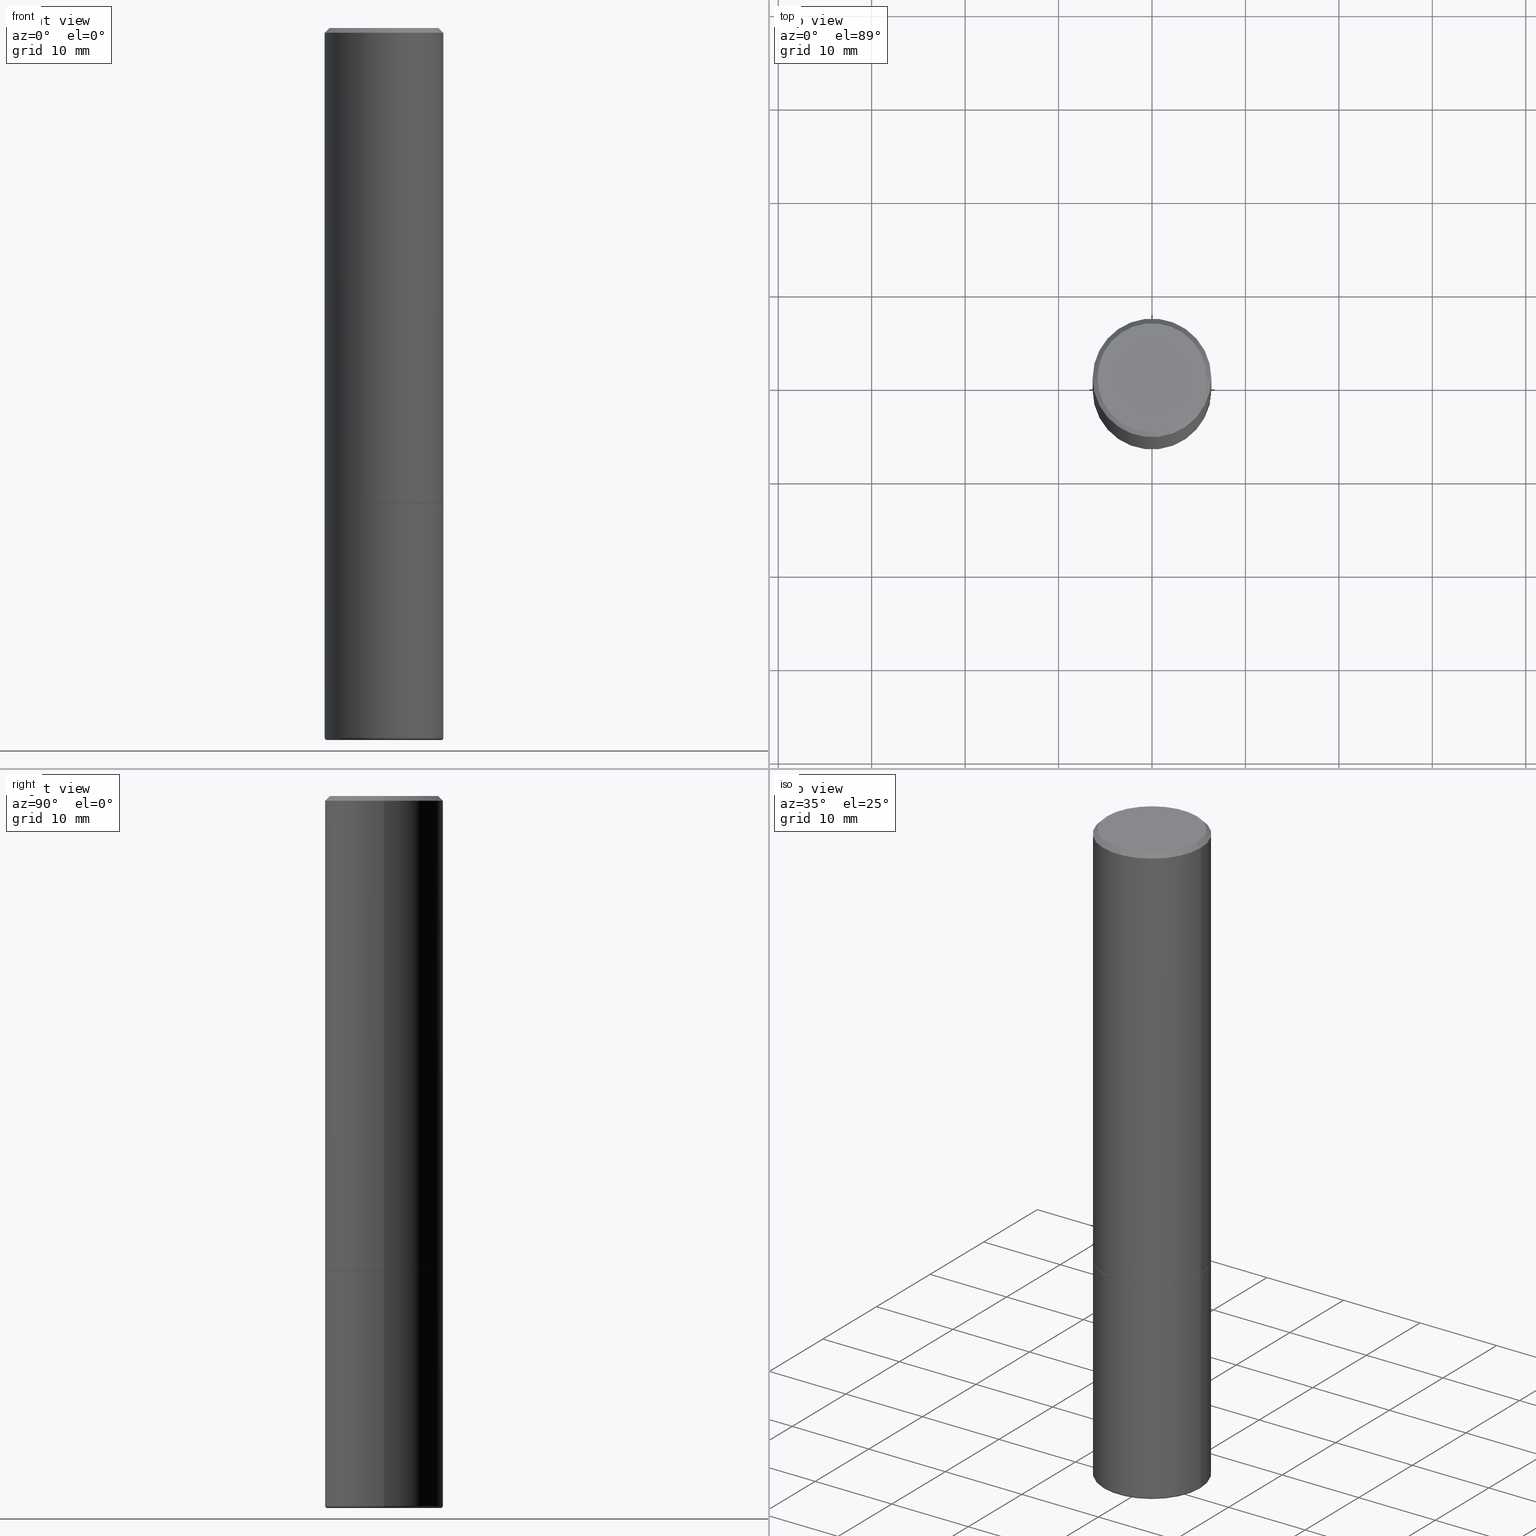
[diagram: canonical four-view strip — front | top / right | iso, engineering-drawing reading convention]
A machine part, canonical four-view strip (front | top / right | iso — engineering-drawing reading convention). The complete STEP part file that produces these views, byte-faithful:
ISO-10303-21;
HEADER;
FILE_DESCRIPTION (( 'STEP AP203' ),
    '1' );
FILE_NAME ('38835.STEP',
    '2024-03-03T15:54:48',
    ( '' ),
    ( '' ),
    'SwSTEP 2.0',
    'SolidWorks 2023',
    '' );
FILE_SCHEMA (( 'CONFIG_CONTROL_DESIGN' ));
ENDSEC;

DATA;
#1 = CARTESIAN_POINT ( 'NONE',  ( 7.311951730493558245E-29, -1.043952920314100628E-14, -2.990000000000000213 ) ) ;
#2 = ORIENTED_EDGE ( 'NONE', *, *, #366, .F. ) ;
#3 = LOCAL_TIME ( 10, 54, 48.00000000000000000, #297 ) ;
#4 = MANIFOLD_SOLID_BREP ( 'Body-Move/Copy2[1]', #337 ) ;
#5 = CC_DESIGN_DATE_AND_TIME_ASSIGNMENT ( #265, #100, ( #201 ) ) ;
#6 =( NAMED_UNIT ( * ) SI_UNIT ( $, .STERADIAN. ) SOLID_ANGLE_UNIT ( ) );
#7 = PERSON_AND_ORGANIZATION_ROLE ( 'creator' ) ;
#8 = CARTESIAN_POINT ( 'NONE',  ( 0.2500000000000002220, -8.725211865769017202E-15, -1.999000000000000110 ) ) ;
#9 = FACE_OUTER_BOUND ( 'NONE', #52, .T. ) ;
#10 = EDGE_CURVE ( 'NONE', #30, #228, #101, .T. ) ;
#11 = AXIS2_PLACEMENT_3D ( 'NONE', #371, #78, #24 ) ;
#12 = DIRECTION ( 'NONE',  ( -1.000000000000000000, 7.105427357600978193E-15, 0.000000000000000000 ) ) ;
#13 = DIRECTION ( 'NONE',  ( -2.445468806185136597E-29, 3.491481338843145583E-15, 1.000000000000000000 ) ) ;
#14 = MANIFOLD_SOLID_BREP ( 'Body-Move/Copy2[2]', #56 ) ;
#15 = CARTESIAN_POINT ( 'NONE',  ( 7.311951730493558245E-29, -1.043952920314100628E-14, -2.990000000000000213 ) ) ;
#16 = LOCAL_TIME ( 10, 54, 48.00000000000000000, #277 ) ;
#17 = ADVANCED_FACE ( 'NONE', ( #244 ), #208, .T. ) ;
#18 = CARTESIAN_POINT ( 'NONE',  ( -0.2299999999999999267, 1.640996229256272519E-15, 4.695363739109317495E-17 ) ) ;
#19 = CARTESIAN_POINT ( 'NONE',  ( 7.336406418555408669E-29, -1.047444401652943478E-14, -2.999999999999999556 ) ) ;
#20 = CARTESIAN_POINT ( 'NONE',  ( 4.890937612370273754E-29, -6.982962677686291954E-15, -2.000000000000000444 ) ) ;
#21 = ADVANCED_FACE ( 'NONE', ( #171 ), #152, .T. ) ;
#22 = EDGE_LOOP ( 'NONE', ( #95, #388, #377, #266 ) ) ;
#23 = CIRCLE ( 'NONE', #261, 0.2500000000000000000 ) ;
#24 = DIRECTION ( 'NONE',  ( 1.000000000000000000, -6.982962677686266711E-15, 0.000000000000000000 ) ) ;
#25 = ORIENTED_EDGE ( 'NONE', *, *, #135, .F. ) ;
#26 = LINE ( 'NONE', #126, #73 ) ;
#27 = CARTESIAN_POINT ( 'NONE',  ( 4.890937612370273754E-29, -6.982962677686291954E-15, -2.000000000000000444 ) ) ;
#28 = CARTESIAN_POINT ( 'NONE',  ( -0.2500000000000001110, 1.776356839400251254E-15, -1.229733772563727146E-29 ) ) ;
#29 = AXIS2_PLACEMENT_3D ( 'NONE', #316, #89, #57 ) ;
#30 = VERTEX_POINT ( 'NONE', #328 ) ;
#31 = DIRECTION ( 'NONE',  ( -2.445468806185136597E-29, 3.491481338843145583E-15, 1.000000000000000000 ) ) ;
#32 = VERTEX_POINT ( 'NONE', #393 ) ;
#33 =( NAMED_UNIT ( * ) PLANE_ANGLE_UNIT ( ) SI_UNIT ( $, .RADIAN. ) );
#34 = ORIENTED_EDGE ( 'NONE', *, *, #339, .F. ) ;
#35 = AXIS2_PLACEMENT_3D ( 'NONE', #286, #258, #94 ) ;
#36 = DATE_AND_TIME ( #358, #204 ) ;
#37 = CARTESIAN_POINT ( 'NONE',  ( 0.2399999999999999911, -1.211544024578571124E-14, -2.990000000000000213 ) ) ;
#38 = ADVANCED_FACE ( 'NONE', ( #359 ), #336, .T. ) ;
#39 = CARTESIAN_POINT ( 'NONE',  ( 0.000000000000000000, 0.000000000000000000, 0.000000000000000000 ) ) ;
#40 = ORIENTED_EDGE ( 'NONE', *, *, #122, .T. ) ;
#41 = AXIS2_PLACEMENT_3D ( 'NONE', #278, #405, #376 ) ;
#42 = AXIS2_PLACEMENT_3D ( 'NONE', #303, #177, #12 ) ;
#43 = CARTESIAN_POINT ( 'NONE',  ( -0.2500000000000002220, -1.748293572161901516E-15, -1.999000000000000110 ) ) ;
#44 = DIRECTION ( 'NONE',  ( 1.000000000000000000, -6.982962677686267499E-15, 4.876176775795936353E-29 ) ) ;
#45 = DIRECTION ( 'NONE',  ( 0.7071067811865467956, -7.319954787623254468E-15, -0.7071067811865482389 ) ) ;
#46 = CC_DESIGN_PERSON_AND_ORGANIZATION_ASSIGNMENT ( #401, #391, ( #378 ) ) ;
#47 = DIRECTION ( 'NONE',  ( -2.445468806185136597E-29, 3.491481338843145583E-15, 1.000000000000000000 ) ) ;
#48 = DATE_TIME_ROLE ( 'classification_date' ) ;
#49 = APPROVAL_ROLE ( '' ) ;
#50 = DIRECTION ( 'NONE',  ( -2.445468806185136597E-29, 3.491481338843145583E-15, 1.000000000000000000 ) ) ;
#51 = ADVANCED_FACE ( 'NONE', ( #326 ), #99, .T. ) ;
#52 = EDGE_LOOP ( 'NONE', ( #412, #312 ) ) ;
#53 = ORIENTED_EDGE ( 'NONE', *, *, #379, .F. ) ;
#54 = VECTOR ( 'NONE', #288, 39.37007874015748143 ) ;
#55 = DIRECTION ( 'NONE',  ( -2.445468806185136597E-29, 3.491481338843145583E-15, 1.000000000000000000 ) ) ;
#56 = CLOSED_SHELL ( 'NONE', ( #17, #88, #416, #21, #384, #351, #287, #104 ) ) ;
#57 = DIRECTION ( 'NONE',  ( 1.000000000000000000, -6.982962677686266711E-15, 0.000000000000000000 ) ) ;
#58 = APPROVAL_PERSON_ORGANIZATION ( #113, #290, #49 ) ;
#59 = ORIENTED_EDGE ( 'NONE', *, *, #149, .F. ) ;
#60 = FACE_OUTER_BOUND ( 'NONE', #284, .T. ) ;
#61 = ORIENTED_EDGE ( 'NONE', *, *, #237, .T. ) ;
#62 = ORIENTED_EDGE ( 'NONE', *, *, #400, .T. ) ;
#63 = LENGTH_MEASURE_WITH_UNIT ( LENGTH_MEASURE( 0.02539999999999999897 ), #323 );
#64 = CIRCLE ( 'NONE', #195, 0.2299999999999999267 ) ;
#65 = DIRECTION ( 'NONE',  ( -2.445468806185136597E-29, 3.491481338843145583E-15, 1.000000000000000000 ) ) ;
#66 = VECTOR ( 'NONE', #354, 39.37007874015748143 ) ;
#67 = DIRECTION ( 'NONE',  ( 2.438088387897960049E-29, -3.491481338843145188E-15, -1.000000000000000000 ) ) ;
#68 = EDGE_CURVE ( 'NONE', #285, #162, #346, .T. ) ;
#69 = DIRECTION ( 'NONE',  ( 1.000000000000000000, -6.982962677686266711E-15, 0.000000000000000000 ) ) ;
#70 = PERSON_AND_ORGANIZATION ( #362, #308 ) ;
#71 = EDGE_LOOP ( 'NONE', ( #314, #197 ) ) ;
#72 = VECTOR ( 'NONE', #45, 39.37007874015748143 ) ;
#73 = VECTOR ( 'NONE', #289, 39.37007874015748143 ) ;
#74 = FACE_OUTER_BOUND ( 'NONE', #133, .T. ) ;
#75 = EDGE_CURVE ( 'NONE', #294, #129, #64, .T. ) ;
#76 = PERSON_AND_ORGANIZATION_ROLE ( 'design_supplier' ) ;
#77 = DATE_AND_TIME ( #408, #16 ) ;
#78 = DIRECTION ( 'NONE',  ( -2.445468806185136597E-29, 3.491481338843145583E-15, 1.000000000000000000 ) ) ;
#79 = APPROVAL_PERSON_ORGANIZATION ( #361, #348, #170 ) ;
#80 = PERSON_AND_ORGANIZATION ( #362, #308 ) ;
#81 = CARTESIAN_POINT ( 'NONE',  ( 7.311951730493558245E-29, -1.043952920314100628E-14, -2.990000000000000213 ) ) ;
#82 = VERTEX_POINT ( 'NONE', #8 ) ;
#83 = ORIENTED_EDGE ( 'NONE', *, *, #122, .F. ) ;
#84 = DIRECTION ( 'NONE',  ( -2.445468806185136597E-29, 3.491481338843145583E-15, 1.000000000000000000 ) ) ;
#85 = AXIS2_PLACEMENT_3D ( 'NONE', #37, #330, #205 ) ;
#86 = AXIS2_PLACEMENT_3D ( 'NONE', #329, #234, #295 ) ;
#87 = DIRECTION ( 'NONE',  ( -2.445468806185136597E-29, 3.491481338843145583E-15, 1.000000000000000000 ) ) ;
#88 = ADVANCED_FACE ( 'NONE', ( #206 ), #304, .T. ) ;
#89 = DIRECTION ( 'NONE',  ( -2.445468806185136597E-29, 3.491481338843145583E-15, 1.000000000000000000 ) ) ;
#90 = LINE ( 'NONE', #188, #66 ) ;
#91 = ORIENTED_EDGE ( 'NONE', *, *, #310, .F. ) ;
#92 = ADVANCED_FACE ( 'NONE', ( #74 ), #130, .T. ) ;
#93 = CIRCLE ( 'NONE', #203, 0.2299999999999999267 ) ;
#94 = DIRECTION ( 'NONE',  ( -1.000000000000000000, 6.982962677686265922E-15, -4.876176775795935793E-29 ) ) ;
#95 = ORIENTED_EDGE ( 'NONE', *, *, #227, .F. ) ;
#96 = DIRECTION ( 'NONE',  ( -2.438088387897960049E-29, 3.491481338843145188E-15, 1.000000000000000000 ) ) ;
#97 = EDGE_LOOP ( 'NONE', ( #253, #83 ) ) ;
#98 = APPROVAL_STATUS ( 'not_yet_approved' ) ;
#99 = CYLINDRICAL_SURFACE ( 'NONE', #292, 0.2500000000000000000 ) ;
#100 = DATE_TIME_ROLE ( 'creation_date' ) ;
#101 = CIRCLE ( 'NONE', #300, 0.2500000000000000000 ) ;
#102 = PLANE ( 'NONE',  #267 ) ;
#103 = AXIS2_PLACEMENT_3D ( 'NONE', #321, #31, #163 ) ;
#104 = ADVANCED_FACE ( 'NONE', ( #136 ), #102, .F. ) ;
#105 = FACE_OUTER_BOUND ( 'NONE', #395, .T. ) ;
#106 = DIRECTION ( 'NONE',  ( 2.438088387897960049E-29, -3.491481338843145188E-15, -1.000000000000000000 ) ) ;
#107 = APPLICATION_CONTEXT ( 'configuration controlled 3d designs of mechanical parts and assemblies' ) ;
#108 = CALENDAR_DATE ( 2024, 3, 3 ) ;
#109 = DIRECTION ( 'NONE',  ( 1.000000000000000000, -6.982962677686269077E-15, 4.883557194083114022E-29 ) ) ;
#110 = ADVANCED_FACE ( 'NONE', ( #9 ), #270, .F. ) ;
#111 = ORIENTED_EDGE ( 'NONE', *, *, #135, .T. ) ;
#112 = LOCAL_TIME ( 10, 54, 48.00000000000000000, #140 ) ;
#113 = PERSON_AND_ORGANIZATION ( #362, #308 ) ;
#114 = DIRECTION ( 'NONE',  ( -2.445468806185136597E-29, 3.491481338843145583E-15, 1.000000000000000000 ) ) ;
#115 = CARTESIAN_POINT ( 'NONE',  ( -1.148236555768741665E-45, 1.639377487418492057E-31, 4.695363739110452099E-17 ) ) ;
#116 = EDGE_LOOP ( 'NONE', ( #215, #153, #61, #409 ) ) ;
#117 = CC_DESIGN_APPROVAL ( #290, ( #347 ) ) ;
#118 = ORIENTED_EDGE ( 'NONE', *, *, #176, .T. ) ;
#119 = DIRECTION ( 'NONE',  ( 1.000000000000000000, -6.982962677686262766E-15, 0.000000000000000000 ) ) ;
#120 = VERTEX_POINT ( 'NONE', #311 ) ;
#121 = LINE ( 'NONE', #345, #209 ) ;
#122 = EDGE_CURVE ( 'NONE', #120, #285, #233, .T. ) ;
#123 = AXIS2_PLACEMENT_3D ( 'NONE', #39, #236, #44 ) ;
#124 = APPROVAL_PERSON_ORGANIZATION ( #172, #392, #301 ) ;
#125 = DIRECTION ( 'NONE',  ( 1.000000000000000000, -6.982962677686262766E-15, 0.000000000000000000 ) ) ;
#126 = CARTESIAN_POINT ( 'NONE',  ( 0.2500000000000001110, -1.745740669421567664E-15, 1.219044193948984649E-29 ) ) ;
#127 = CC_DESIGN_PERSON_AND_ORGANIZATION_ASSIGNMENT ( #80, #76, ( #283 ) ) ;
#128 = CARTESIAN_POINT ( 'NONE',  ( 0.2299999999999999267, -1.681434332853598617E-15, 4.695363739111602110E-17 ) ) ;
#129 = VERTEX_POINT ( 'NONE', #18 ) ;
#130 = TOROIDAL_SURFACE ( 'NONE', #255, 0.2399999999999999911, 0.009999999999999807654 ) ;
#131 = PLANE ( 'NONE',  #165 ) ;
#132 = ORIENTED_EDGE ( 'NONE', *, *, #372, .T. ) ;
#133 = EDGE_LOOP ( 'NONE', ( #181, #40, #189, #324 ) ) ;
#134 = APPLICATION_PROTOCOL_DEFINITION ( 'international standard', 'config_control_design', 1994, #107 ) ;
#135 = EDGE_CURVE ( 'NONE', #82, #403, #183, .T. ) ;
#136 = FACE_OUTER_BOUND ( 'NONE', #71, .T. ) ;
#137 = APPROVAL_STATUS ( 'not_yet_approved' ) ;
#138 = AXIS2_PLACEMENT_3D ( 'NONE', #180, #114, #340 ) ;
#139 = CARTESIAN_POINT ( 'NONE',  ( -1.148236555768741665E-45, 1.639377487418492057E-31, 4.695363739110452099E-17 ) ) ;
#140 = COORDINATED_UNIVERSAL_TIME_OFFSET ( 5, 0, .BEHIND. ) ;
#141 = CARTESIAN_POINT ( 'NONE',  ( 0.000000000000000000, 0.000000000000000000, 0.000000000000000000 ) ) ;
#142 = PRODUCT_DEFINITION_SHAPE ( 'NONE', 'NONE',  #201 ) ;
#143 = DIRECTION ( 'NONE',  ( 0.000000000000000000, 0.000000000000000000, 1.000000000000000000 ) ) ;
#144 = DIRECTION ( 'NONE',  ( -2.445468806185136597E-29, 3.491481338843145583E-15, 1.000000000000000000 ) ) ;
#145 = AXIS2_PLACEMENT_3D ( 'NONE', #325, #238, #226 ) ;
#146 = SHAPE_DEFINITION_REPRESENTATION ( #142, #399 ) ;
#147 = CALENDAR_DATE ( 2024, 3, 3 ) ;
#148 = DIRECTION ( 'NONE',  ( 1.000000000000000000, -6.982962677686266711E-15, 0.000000000000000000 ) ) ;
#149 = EDGE_CURVE ( 'NONE', #184, #291, #373, .T. ) ;
#150 = PERSON_AND_ORGANIZATION_ROLE ( 'creator' ) ;
#151 = DIRECTION ( 'NONE',  ( 1.000000000000000000, -6.982962677686266711E-15, 0.000000000000000000 ) ) ;
#152 = CONICAL_SURFACE ( 'NONE', #159, 0.2500000000000000000, 0.7853981633974472798 ) ;
#153 = ORIENTED_EDGE ( 'NONE', *, *, #149, .T. ) ;
#154 = CC_DESIGN_APPROVAL ( #348, ( #283 ) ) ;
#155 = EDGE_LOOP ( 'NONE', ( #225, #406, #25, #193 ) ) ;
#156 = CC_DESIGN_PERSON_AND_ORGANIZATION_ASSIGNMENT ( #168, #7, ( #201 ) ) ;
#157 = FACE_OUTER_BOUND ( 'NONE', #221, .T. ) ;
#158 = DIRECTION ( 'NONE',  ( -2.445468806185136597E-29, 3.491481338843145583E-15, 1.000000000000000000 ) ) ;
#159 = AXIS2_PLACEMENT_3D ( 'NONE', #230, #274, #332 ) ;
#160 = CARTESIAN_POINT ( 'NONE',  ( -0.2500000000000000000, 1.776356839400250465E-15, -1.229733772563726445E-29 ) ) ;
#161 = CARTESIAN_POINT ( 'NONE',  ( 0.2489999999999999991, -8.721720384430172617E-15, -2.000000000000000444 ) ) ;
#162 = VERTEX_POINT ( 'NONE', #207 ) ;
#163 = DIRECTION ( 'NONE',  ( 1.000000000000000000, -6.982962677686267499E-15, 4.876176775795936353E-29 ) ) ;
#164 = ORIENTED_EDGE ( 'NONE', *, *, #75, .F. ) ;
#165 = AXIS2_PLACEMENT_3D ( 'NONE', #417, #96, #385 ) ;
#166 = ORIENTED_EDGE ( 'NONE', *, *, #68, .F. ) ;
#167 = EDGE_CURVE ( 'NONE', #291, #184, #247, .T. ) ;
#168 = PERSON_AND_ORGANIZATION ( #362, #308 ) ;
#169 = DIRECTION ( 'NONE',  ( -2.445468806185136597E-29, 3.491481338843145583E-15, 1.000000000000000000 ) ) ;
#170 = APPROVAL_ROLE ( '' ) ;
#171 = FACE_OUTER_BOUND ( 'NONE', #22, .T. ) ;
#172 = PERSON_AND_ORGANIZATION ( #362, #308 ) ;
#173 = AXIS2_PLACEMENT_3D ( 'NONE', #20, #309, #375 ) ;
#174 = CC_DESIGN_SECURITY_CLASSIFICATION ( #347, ( #283 ) ) ;
#175 = DIRECTION ( 'NONE',  ( -1.000000000000000000, 6.982962677686265922E-15, -4.876176775795935793E-29 ) ) ;
#176 = EDGE_CURVE ( 'NONE', #285, #120, #387, .T. ) ;
#177 = DIRECTION ( 'NONE',  ( 7.105427357601001859E-15, 1.000000000000000000, -3.491481338843145583E-15 ) ) ;
#178 = CARTESIAN_POINT ( 'NONE',  ( -0.2500000000000000000, 1.675911042644703577E-15, -0.02000000000000005593 ) ) ;
#179 = AXIS2_PLACEMENT_3D ( 'NONE', #398, #106, #370 ) ;
#180 = CARTESIAN_POINT ( 'NONE',  ( 4.888492143564088712E-29, -6.979471196347448158E-15, -1.999000000000000110 ) ) ;
#181 = ORIENTED_EDGE ( 'NONE', *, *, #400, .F. ) ;
#182 = EDGE_CURVE ( 'NONE', #403, #82, #222, .T. ) ;
#183 = CIRCLE ( 'NONE', #138, 0.2500000000000002220 ) ;
#184 = VERTEX_POINT ( 'NONE', #246 ) ;
#185 = DIRECTION ( 'NONE',  ( 1.000000000000000000, -6.982962677686266711E-15, 0.000000000000000000 ) ) ;
#186 = DIRECTION ( 'NONE',  ( -2.445468806185136877E-29, 3.491481338843145188E-15, 1.000000000000000000 ) ) ;
#187 = AXIS2_PLACEMENT_3D ( 'NONE', #413, #55, #415 ) ;
#188 = CARTESIAN_POINT ( 'NONE',  ( -0.2500000000000000000, 1.675911042644703577E-15, -0.02000000000000005593 ) ) ;
#189 = ORIENTED_EDGE ( 'NONE', *, *, #68, .T. ) ;
#190 = CYLINDRICAL_SURFACE ( 'NONE', #103, 0.2500000000000001110 ) ;
#191 = EDGE_LOOP ( 'NONE', ( #164, #199, #251, #53 ) ) ;
#192 = CYLINDRICAL_SURFACE ( 'NONE', #145, 0.2500000000000000000 ) ;
#193 = ORIENTED_EDGE ( 'NONE', *, *, #237, .F. ) ;
#194 = EDGE_CURVE ( 'NONE', #299, #162, #368, .T. ) ;
#195 = AXIS2_PLACEMENT_3D ( 'NONE', #139, #169, #296 ) ;
#196 = VECTOR ( 'NONE', #186, 39.37007874015748143 ) ;
#197 = ORIENTED_EDGE ( 'NONE', *, *, #75, .T. ) ;
#198 = MECHANICAL_CONTEXT ( 'NONE', #107, 'mechanical' ) ;
#199 = ORIENTED_EDGE ( 'NONE', *, *, #227, .T. ) ;
#200 = DIMENSIONAL_EXPONENTS ( 1.000000000000000000, 0.000000000000000000, 0.000000000000000000, 0.000000000000000000, 0.000000000000000000, 0.000000000000000000, 0.000000000000000000 ) ;
#201 = PRODUCT_DEFINITION ( 'UNKNOWN', '', #283, #232 ) ;
#202 = DIRECTION ( 'NONE',  ( -2.445468806185136597E-29, 3.491481338843145583E-15, 1.000000000000000000 ) ) ;
#203 = AXIS2_PLACEMENT_3D ( 'NONE', #115, #84, #211 ) ;
#204 = LOCAL_TIME ( 10, 54, 48.00000000000000000, #327 ) ;
#205 = DIRECTION ( 'NONE',  ( 1.000000000000000000, -6.982962677686284854E-15, 0.000000000000000000 ) ) ;
#206 = FACE_OUTER_BOUND ( 'NONE', #380, .T. ) ;
#207 = CARTESIAN_POINT ( 'NONE',  ( 0.2499999999999998890, -1.218526987256257138E-14, -2.990000000000000213 ) ) ;
#208 = CONICAL_SURFACE ( 'NONE', #243, 0.2489999999999999991, 0.7853981633975336552 ) ;
#209 = VECTOR ( 'NONE', #254, 39.37007874015748143 ) ;
#210 = PERSON_AND_ORGANIZATION ( #362, #308 ) ;
#211 = DIRECTION ( 'NONE',  ( 1.000000000000000000, -6.982962677686267499E-15, 4.875813741439101456E-29 ) ) ;
#212 = ORIENTED_EDGE ( 'NONE', *, *, #315, .F. ) ;
#213 = DIRECTION ( 'NONE',  ( -2.445468806185136597E-29, 3.491481338843145583E-15, 1.000000000000000000 ) ) ;
#214 = EDGE_CURVE ( 'NONE', #129, #294, #93, .T. ) ;
#215 = ORIENTED_EDGE ( 'NONE', *, *, #305, .F. ) ;
#216 = CARTESIAN_POINT ( 'NONE',  ( 4.890937612370287172E-31, -6.982962677686310098E-17, -0.02000000000000005593 ) ) ;
#217 = VECTOR ( 'NONE', #381, 39.37007874015748143 ) ;
#218 = CARTESIAN_POINT ( 'NONE',  ( -0.2499999999999998890, -8.663172363740755817E-15, -2.990000000000000213 ) ) ;
#219 = EDGE_CURVE ( 'NONE', #228, #30, #23, .T. ) ;
#220 = DIRECTION ( 'NONE',  ( 0.7071067811866078578, -2.468850131082888544E-15, 0.7071067811864871766 ) ) ;
#221 = EDGE_LOOP ( 'NONE', ( #272, #59 ) ) ;
#222 = CIRCLE ( 'NONE', #41, 0.2500000000000002220 ) ;
#223 = CIRCLE ( 'NONE', #374, 0.2500000000000000000 ) ;
#224 = CARTESIAN_POINT ( 'NONE',  ( -0.2500000000000000000, -6.934889101013398653E-15, -2.000000000000000444 ) ) ;
#225 = ORIENTED_EDGE ( 'NONE', *, *, #167, .T. ) ;
#226 = DIRECTION ( 'NONE',  ( 1.000000000000000000, -6.982962677686266711E-15, 4.876176775795935793E-29 ) ) ;
#227 = EDGE_CURVE ( 'NONE', #294, #30, #342, .T. ) ;
#228 = VERTEX_POINT ( 'NONE', #178 ) ;
#229 = APPLICATION_PROTOCOL_DEFINITION ( 'international standard', 'config_control_design', 1994, #231 ) ;
#230 = CARTESIAN_POINT ( 'NONE',  ( 4.890937612370287172E-31, -6.982962677686310098E-17, -0.02000000000000005593 ) ) ;
#231 = APPLICATION_CONTEXT ( 'configuration controlled 3d designs of mechanical parts and assemblies' ) ;
#232 = DESIGN_CONTEXT ( 'detailed design', #231, 'design' ) ;
#233 = CIRCLE ( 'NONE', #317, 0.2400000000000000466 ) ;
#234 = DIRECTION ( 'NONE',  ( 2.445468806185136597E-29, -3.491481338843145583E-15, -1.000000000000000000 ) ) ;
#235 = CC_DESIGN_APPROVAL ( #392, ( #201 ) ) ;
#236 = DIRECTION ( 'NONE',  ( -2.445468806185136597E-29, 3.491481338843145583E-15, 1.000000000000000000 ) ) ;
#237 = EDGE_CURVE ( 'NONE', #291, #82, #307, .T. ) ;
#238 = DIRECTION ( 'NONE',  ( -2.445468806185136597E-29, 3.491481338843145583E-15, 1.000000000000000000 ) ) ;
#239 = ORIENTED_EDGE ( 'NONE', *, *, #219, .F. ) ;
#240 = DATE_AND_TIME ( #108, #3 ) ;
#241 = DIRECTION ( 'NONE',  ( 1.000000000000000000, -6.982962677686266711E-15, 4.876176775795935793E-29 ) ) ;
#242 = PERSON_AND_ORGANIZATION_ROLE ( 'classification_officer' ) ;
#243 = AXIS2_PLACEMENT_3D ( 'NONE', #364, #13, #402 ) ;
#244 = FACE_OUTER_BOUND ( 'NONE', #155, .T. ) ;
#245 = EDGE_CURVE ( 'NONE', #357, #32, #268, .T. ) ;
#246 = CARTESIAN_POINT ( 'NONE',  ( -0.2489999999999999991, -5.208412811295419307E-15, -2.000000000000000444 ) ) ;
#247 = CIRCLE ( 'NONE', #173, 0.2489999999999999991 ) ;
#248 = CC_DESIGN_DATE_AND_TIME_ASSIGNMENT ( #306, #48, ( #347 ) ) ;
#249 = APPROVAL_STATUS ( 'not_yet_approved' ) ;
#250 = DIRECTION ( 'NONE',  ( 1.000000000000000000, -6.982962677686266711E-15, 0.000000000000000000 ) ) ;
#251 = ORIENTED_EDGE ( 'NONE', *, *, #10, .T. ) ;
#252 = CARTESIAN_POINT ( 'NONE',  ( 0.2500000000000000000, -1.784954126219746189E-15, -0.02000000000000005593 ) ) ;
#253 = ORIENTED_EDGE ( 'NONE', *, *, #176, .F. ) ;
#254 = DIRECTION ( 'NONE',  ( -0.7071067811866078578, 7.493145998870571886E-15, 0.7071067811864871766 ) ) ;
#255 = AXIS2_PLACEMENT_3D ( 'NONE', #15, #144, #333 ) ;
#256 = CONICAL_SURFACE ( 'NONE', #29, 0.2489999999999999991, 0.7853981633975336552 ) ;
#257 = LINE ( 'NONE', #28, #217 ) ;
#258 = DIRECTION ( 'NONE',  ( 2.438088387897960049E-29, -3.491481338843145188E-15, -1.000000000000000000 ) ) ;
#259 = CARTESIAN_POINT ( 'NONE',  ( 0.2489999999999999991, -8.721720384430172617E-15, -2.000000000000000444 ) ) ;
#260 = EDGE_LOOP ( 'NONE', ( #320, #132, #2, #34 ) ) ;
#261 = AXIS2_PLACEMENT_3D ( 'NONE', #216, #50, #151 ) ;
#262 = CARTESIAN_POINT ( 'NONE',  ( 0.2500000000000000000, -1.745740669421566678E-15, 1.219044193948983948E-29 ) ) ;
#263 = ORIENTED_EDGE ( 'NONE', *, *, #245, .F. ) ;
#264 = CARTESIAN_POINT ( 'NONE',  ( 4.890937612370287172E-31, -6.982962677686310098E-17, -0.02000000000000005593 ) ) ;
#265 = DATE_AND_TIME ( #273, #112 ) ;
#266 = ORIENTED_EDGE ( 'NONE', *, *, #219, .T. ) ;
#267 = AXIS2_PLACEMENT_3D ( 'NONE', #363, #67, #175 ) ;
#268 = CIRCLE ( 'NONE', #187, 0.2500000000000000000 ) ;
#269 = FACE_OUTER_BOUND ( 'NONE', #191, .T. ) ;
#270 = PLANE ( 'NONE',  #179 ) ;
#271 = CARTESIAN_POINT ( 'NONE',  ( 0.000000000000000000, 0.000000000000000000, 0.000000000000000000 ) ) ;
#272 = ORIENTED_EDGE ( 'NONE', *, *, #167, .F. ) ;
#273 = CALENDAR_DATE ( 2024, 3, 3 ) ;
#274 = DIRECTION ( 'NONE',  ( 2.445468806185136597E-29, -3.491481338843145583E-15, -1.000000000000000000 ) ) ;
#275 = EDGE_CURVE ( 'NONE', #82, #30, #26, .T. ) ;
#276 = APPROVAL_DATE_TIME ( #77, #290 ) ;
#277 = COORDINATED_UNIVERSAL_TIME_OFFSET ( 5, 0, .BEHIND. ) ;
#278 = CARTESIAN_POINT ( 'NONE',  ( 4.888492143564088712E-29, -6.979471196347448158E-15, -1.999000000000000110 ) ) ;
#279 = CC_DESIGN_PERSON_AND_ORGANIZATION_ASSIGNMENT ( #70, #150, ( #283 ) ) ;
#280 = ORIENTED_EDGE ( 'NONE', *, *, #275, .F. ) ;
#281 = COORDINATED_UNIVERSAL_TIME_OFFSET ( 5, 0, .BEHIND. ) ;
#282 = AXIS2_PLACEMENT_3D ( 'NONE', #81, #411, #119 ) ;
#283 = PRODUCT_DEFINITION_FORMATION_WITH_SPECIFIED_SOURCE ( 'ANY', '', #378, .NOT_KNOWN. ) ;
#284 = EDGE_LOOP ( 'NONE', ( #212, #322, #367, #239 ) ) ;
#285 = VERTEX_POINT ( 'NONE', #389 ) ;
#286 = CARTESIAN_POINT ( 'NONE',  ( 1.210550456377282398E-28, -3.644824032368776532E-15, -2.999999999999999556 ) ) ;
#287 = ADVANCED_FACE ( 'NONE', ( #157 ), #131, .F. ) ;
#288 = DIRECTION ( 'NONE',  ( -2.445468806185136877E-29, 3.491481338843145188E-15, 1.000000000000000000 ) ) ;
#289 = DIRECTION ( 'NONE',  ( -2.445468806185136877E-29, 3.491481338843145188E-15, 1.000000000000000000 ) ) ;
#290 = APPROVAL ( #249, 'UNSPECIFIED' ) ;
#291 = VERTEX_POINT ( 'NONE', #259 ) ;
#292 = AXIS2_PLACEMENT_3D ( 'NONE', #141, #202, #241 ) ;
#293 = CONICAL_SURFACE ( 'NONE', #86, 0.2500000000000000000, 0.7853981633974472798 ) ;
#294 = VERTEX_POINT ( 'NONE', #128 ) ;
#295 = DIRECTION ( 'NONE',  ( -1.000000000000000000, 6.982962677686266711E-15, 0.000000000000000000 ) ) ;
#296 = DIRECTION ( 'NONE',  ( 1.000000000000000000, -6.982962677686267499E-15, 4.875813741439101456E-29 ) ) ;
#297 = COORDINATED_UNIVERSAL_TIME_OFFSET ( 5, 0, .BEHIND. ) ;
#298 = ADVANCED_FACE ( 'NONE', ( #386 ), #352, .T. ) ;
#299 = VERTEX_POINT ( 'NONE', #218 ) ;
#300 = AXIS2_PLACEMENT_3D ( 'NONE', #264, #302, #69 ) ;
#301 = APPROVAL_ROLE ( '' ) ;
#302 = DIRECTION ( 'NONE',  ( -2.445468806185136597E-29, 3.491481338843145583E-15, 1.000000000000000000 ) ) ;
#303 = CARTESIAN_POINT ( 'NONE',  ( -0.2399999999999999911, -8.734226637316765899E-15, -2.990000000000000213 ) ) ;
#304 = CYLINDRICAL_SURFACE ( 'NONE', #123, 0.2500000000000001110 ) ;
#305 = EDGE_CURVE ( 'NONE', #184, #403, #121, .T. ) ;
#306 = DATE_AND_TIME ( #147, #318 ) ;
#307 = LINE ( 'NONE', #161, #313 ) ;
#308 = ORGANIZATION ( 'UNSPECIFIED', 'UNSPECIFIED', '' ) ;
#309 = DIRECTION ( 'NONE',  ( -2.445468806185136597E-29, 3.491481338843145583E-15, 1.000000000000000000 ) ) ;
#310 = EDGE_CURVE ( 'NONE', #162, #299, #404, .T. ) ;
#311 = CARTESIAN_POINT ( 'NONE',  ( -0.2400000000000000466, -8.716156907222976683E-15, -2.999999999999999556 ) ) ;
#312 = ORIENTED_EDGE ( 'NONE', *, *, #245, .T. ) ;
#313 = VECTOR ( 'NONE', #220, 39.37007874015748143 ) ;
#314 = ORIENTED_EDGE ( 'NONE', *, *, #214, .T. ) ;
#315 = EDGE_CURVE ( 'NONE', #403, #228, #257, .T. ) ;
#316 = CARTESIAN_POINT ( 'NONE',  ( 4.890937612370273754E-29, -6.982962677686291954E-15, -2.000000000000000444 ) ) ;
#317 = AXIS2_PLACEMENT_3D ( 'NONE', #335, #47, #250 ) ;
#318 = LOCAL_TIME ( 10, 54, 48.00000000000000000, #281 ) ;
#319 = CC_DESIGN_PERSON_AND_ORGANIZATION_ASSIGNMENT ( #210, #242, ( #347 ) ) ;
#320 = ORIENTED_EDGE ( 'NONE', *, *, #310, .T. ) ;
#321 = CARTESIAN_POINT ( 'NONE',  ( 0.000000000000000000, 0.000000000000000000, 0.000000000000000000 ) ) ;
#322 = ORIENTED_EDGE ( 'NONE', *, *, #182, .T. ) ;
#323 =( LENGTH_UNIT ( ) NAMED_UNIT ( * ) SI_UNIT ( $, .METRE. ) );
#324 = ORIENTED_EDGE ( 'NONE', *, *, #194, .F. ) ;
#325 = CARTESIAN_POINT ( 'NONE',  ( 0.000000000000000000, 0.000000000000000000, 0.000000000000000000 ) ) ;
#326 = FACE_OUTER_BOUND ( 'NONE', #260, .T. ) ;
#327 = COORDINATED_UNIVERSAL_TIME_OFFSET ( 5, 0, .BEHIND. ) ;
#328 = CARTESIAN_POINT ( 'NONE',  ( 0.2500000000000000000, -1.784954126219746189E-15, -0.02000000000000005593 ) ) ;
#329 = CARTESIAN_POINT ( 'NONE',  ( 4.890937612370287172E-31, -6.982962677686310098E-17, -0.02000000000000005593 ) ) ;
#330 = DIRECTION ( 'NONE',  ( -6.982962677686266711E-15, -1.000000000000000000, 3.491481338843145583E-15 ) ) ;
#331 = APPROVAL_DATE_TIME ( #36, #392 ) ;
#332 = DIRECTION ( 'NONE',  ( -1.000000000000000000, 6.982962677686266711E-15, 0.000000000000000000 ) ) ;
#333 = DIRECTION ( 'NONE',  ( 1.000000000000000000, -6.982962677686269077E-15, 4.883557194083114022E-29 ) ) ;
#334 = SECURITY_CLASSIFICATION_LEVEL ( 'unclassified' ) ;
#335 = CARTESIAN_POINT ( 'NONE',  ( 7.336406418555408669E-29, -1.047444401652943478E-14, -2.999999999999999556 ) ) ;
#336 = TOROIDAL_SURFACE ( 'NONE', #382, 0.2399999999999999911, 0.009999999999999807654 ) ;
#337 = CLOSED_SHELL ( 'NONE', ( #51, #38, #110, #410, #92, #298 ) ) ;
#338 = CIRCLE ( 'NONE', #42, 0.009999999999999790307 ) ;
#339 = EDGE_CURVE ( 'NONE', #162, #32, #350, .T. ) ;
#340 = DIRECTION ( 'NONE',  ( 1.000000000000000000, -6.982962677686268288E-15, 0.000000000000000000 ) ) ;
#341 = ORIENTED_EDGE ( 'NONE', *, *, #339, .T. ) ;
#342 = LINE ( 'NONE', #252, #72 ) ;
#343 = ORIENTED_EDGE ( 'NONE', *, *, #194, .T. ) ;
#344 = UNCERTAINTY_MEASURE_WITH_UNIT (LENGTH_MEASURE( 1.000000000000000082E-05 ), #394, 'distance_accuracy_value', 'NONE');
#345 = CARTESIAN_POINT ( 'NONE',  ( -0.2489999999999999991, -5.213711265643642498E-15, -2.000000000000000444 ) ) ;
#346 = CIRCLE ( 'NONE', #85, 0.009999999999999790307 ) ;
#347 = SECURITY_CLASSIFICATION ( '', '', #334 ) ;
#348 = APPROVAL ( #137, 'UNSPECIFIED' ) ;
#349 = FACE_OUTER_BOUND ( 'NONE', #116, .T. ) ;
#350 = LINE ( 'NONE', #262, #196 ) ;
#351 = ADVANCED_FACE ( 'NONE', ( #349 ), #256, .T. ) ;
#352 = PLANE ( 'NONE',  #35 ) ;
#353 = EDGE_LOOP ( 'NONE', ( #118, #62, #91, #166 ) ) ;
#354 = DIRECTION ( 'NONE',  ( -0.7071067811865467956, 2.468850131082249172E-15, -0.7071067811865482389 ) ) ;
#355 = ORIENTED_EDGE ( 'NONE', *, *, #10, .F. ) ;
#356 = DIRECTION ( 'NONE',  ( 1.000000000000000000, 0.000000000000000000, 0.000000000000000000 ) ) ;
#357 = VERTEX_POINT ( 'NONE', #224 ) ;
#358 = CALENDAR_DATE ( 2024, 3, 3 ) ;
#359 = FACE_OUTER_BOUND ( 'NONE', #353, .T. ) ;
#360 = PRODUCT_RELATED_PRODUCT_CATEGORY ( 'detail', '', ( #378 ) ) ;
#361 = PERSON_AND_ORGANIZATION ( #362, #308 ) ;
#362 = PERSON ( 'UNSPECIFIED', 'UNSPECIFIED', 'UNSPECIFIED', ('UNSPECIFIED'), ('UNSPECIFIED'), ('UNSPECIFIED') ) ;
#363 = CARTESIAN_POINT ( 'NONE',  ( 1.606081415867840870E-15, 0.2299999999999999267, -7.795638892383710465E-16 ) ) ;
#364 = CARTESIAN_POINT ( 'NONE',  ( 4.890937612370273754E-29, -6.982962677686291954E-15, -2.000000000000000444 ) ) ;
#365 = APPROVAL_DATE_TIME ( #240, #348 ) ;
#366 = EDGE_CURVE ( 'NONE', #32, #357, #223, .T. ) ;
#367 = ORIENTED_EDGE ( 'NONE', *, *, #275, .T. ) ;
#368 = CIRCLE ( 'NONE', #282, 0.2500000000000000000 ) ;
#369 = CARTESIAN_POINT ( 'NONE',  ( 7.311951730493558245E-29, -1.043952920314100628E-14, -2.990000000000000213 ) ) ;
#370 = DIRECTION ( 'NONE',  ( -1.000000000000000000, 6.982962677686265922E-15, -4.876176775795935793E-29 ) ) ;
#371 = CARTESIAN_POINT ( 'NONE',  ( 4.890937612370273754E-29, -6.982962677686291954E-15, -2.000000000000000444 ) ) ;
#372 = EDGE_CURVE ( 'NONE', #299, #357, #414, .T. ) ;
#373 = CIRCLE ( 'NONE', #11, 0.2489999999999999991 ) ;
#374 = AXIS2_PLACEMENT_3D ( 'NONE', #27, #158, #185 ) ;
#375 = DIRECTION ( 'NONE',  ( 1.000000000000000000, -6.982962677686266711E-15, 0.000000000000000000 ) ) ;
#376 = DIRECTION ( 'NONE',  ( 1.000000000000000000, -6.982962677686268288E-15, 0.000000000000000000 ) ) ;
#377 = ORIENTED_EDGE ( 'NONE', *, *, #379, .T. ) ;
#378 = PRODUCT ( '38835', '38835', '', ( #198 ) ) ;
#379 = EDGE_CURVE ( 'NONE', #129, #228, #90, .T. ) ;
#380 = EDGE_LOOP ( 'NONE', ( #111, #390, #355, #280 ) ) ;
#381 = DIRECTION ( 'NONE',  ( -2.445468806185136877E-29, 3.491481338843145188E-15, 1.000000000000000000 ) ) ;
#382 = AXIS2_PLACEMENT_3D ( 'NONE', #369, #65, #109 ) ;
#383 = AXIS2_PLACEMENT_3D ( 'NONE', #1, #87, #125 ) ;
#384 = ADVANCED_FACE ( 'NONE', ( #60 ), #190, .T. ) ;
#385 = DIRECTION ( 'NONE',  ( 1.000000000000000000, -6.982962677686265922E-15, 4.876176775795935793E-29 ) ) ;
#386 = FACE_OUTER_BOUND ( 'NONE', #97, .T. ) ;
#387 = CIRCLE ( 'NONE', #407, 0.2400000000000000466 ) ;
#388 = ORIENTED_EDGE ( 'NONE', *, *, #214, .F. ) ;
#389 = CARTESIAN_POINT ( 'NONE',  ( 0.2400000000000000466, -1.215035505917413973E-14, -2.999999999999999556 ) ) ;
#390 = ORIENTED_EDGE ( 'NONE', *, *, #315, .T. ) ;
#391 = PERSON_AND_ORGANIZATION_ROLE ( 'design_owner' ) ;
#392 = APPROVAL ( #98, 'UNSPECIFIED' ) ;
#393 = CARTESIAN_POINT ( 'NONE',  ( 0.2500000000000000000, -8.728703347107858632E-15, -2.000000000000000444 ) ) ;
#394 =( CONVERSION_BASED_UNIT ( 'INCH', #63 ) LENGTH_UNIT ( ) NAMED_UNIT ( #200 ) );
#395 = EDGE_LOOP ( 'NONE', ( #418, #343, #341, #263 ) ) ;
#396 =( GEOMETRIC_REPRESENTATION_CONTEXT ( 3 ) GLOBAL_UNCERTAINTY_ASSIGNED_CONTEXT ( ( #344 ) ) GLOBAL_UNIT_ASSIGNED_CONTEXT ( ( #394, #33, #6 ) ) REPRESENTATION_CONTEXT ( 'NONE', 'WORKASPACE' ) );
#397 = AXIS2_PLACEMENT_3D ( 'NONE', #271, #143, #356 ) ;
#398 = CARTESIAN_POINT ( 'NONE',  ( 4.890937612370273754E-29, -6.982962677686291954E-15, -2.000000000000000444 ) ) ;
#399 = ADVANCED_BREP_SHAPE_REPRESENTATION ( '38835', ( #4, #14, #397 ), #396 ) ;
#400 = EDGE_CURVE ( 'NONE', #120, #299, #338, .T. ) ;
#401 = PERSON_AND_ORGANIZATION ( #362, #308 ) ;
#402 = DIRECTION ( 'NONE',  ( 1.000000000000000000, -6.982962677686266711E-15, 0.000000000000000000 ) ) ;
#403 = VERTEX_POINT ( 'NONE', #43 ) ;
#404 = CIRCLE ( 'NONE', #383, 0.2500000000000000000 ) ;
#405 = DIRECTION ( 'NONE',  ( -2.445468806185136597E-29, 3.491481338843145583E-15, 1.000000000000000000 ) ) ;
#406 = ORIENTED_EDGE ( 'NONE', *, *, #305, .T. ) ;
#407 = AXIS2_PLACEMENT_3D ( 'NONE', #19, #213, #148 ) ;
#408 = CALENDAR_DATE ( 2024, 3, 3 ) ;
#409 = ORIENTED_EDGE ( 'NONE', *, *, #182, .F. ) ;
#410 = ADVANCED_FACE ( 'NONE', ( #105 ), #192, .T. ) ;
#411 = DIRECTION ( 'NONE',  ( -2.445468806185136597E-29, 3.491481338843145583E-15, 1.000000000000000000 ) ) ;
#412 = ORIENTED_EDGE ( 'NONE', *, *, #366, .T. ) ;
#413 = CARTESIAN_POINT ( 'NONE',  ( 4.890937612370273754E-29, -6.982962677686291954E-15, -2.000000000000000444 ) ) ;
#414 = LINE ( 'NONE', #160, #54 ) ;
#415 = DIRECTION ( 'NONE',  ( 1.000000000000000000, -6.982962677686266711E-15, 0.000000000000000000 ) ) ;
#416 = ADVANCED_FACE ( 'NONE', ( #269 ), #293, .T. ) ;
#417 = CARTESIAN_POINT ( 'NONE',  ( 4.890937612370273754E-29, -6.982962677686291954E-15, -2.000000000000000444 ) ) ;
#418 = ORIENTED_EDGE ( 'NONE', *, *, #372, .F. ) ;
ENDSEC;
END-ISO-10303-21;
